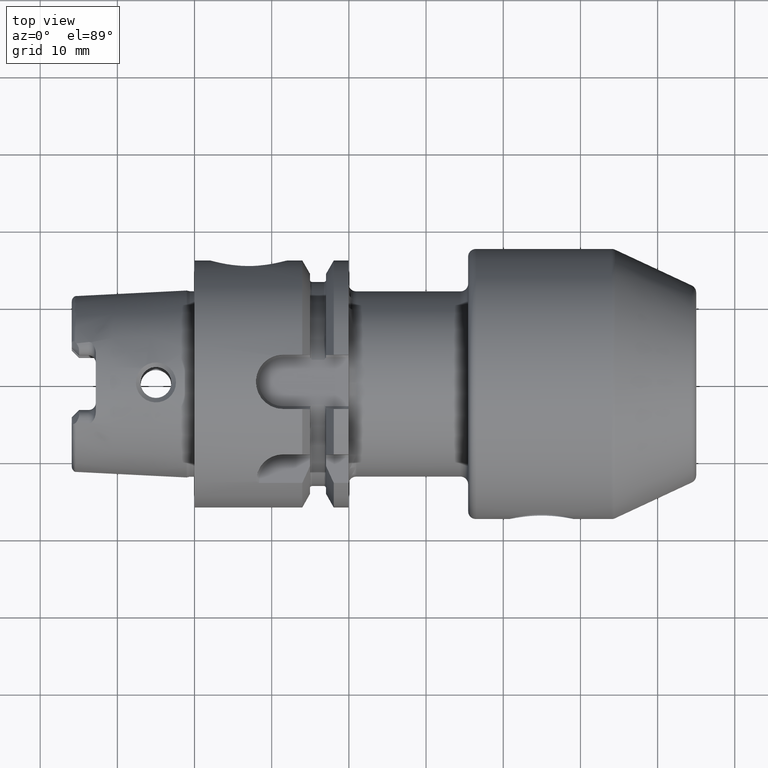
[diagram: clean part render]
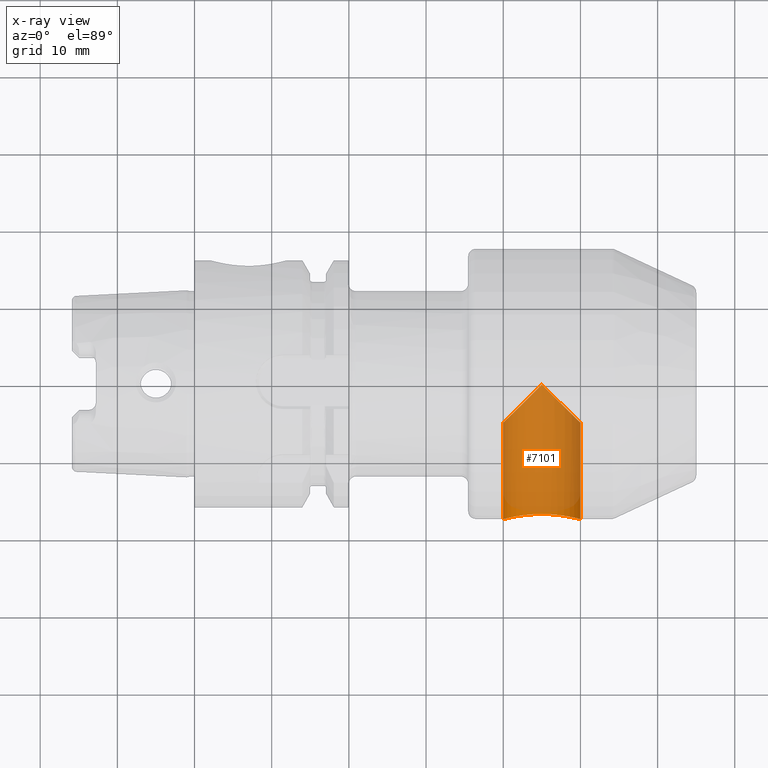
[diagram: x-ray — body ghosted, one internal face saturated and labeled with its STEP entity id]
A machine part, top view, then the same camera in x-ray: the body is ghosted and one INTERNAL B-rep face — a face not visible from any outside direction — is saturated and labeled: STEP entity #7101.
In plain terms, the highlighted cylindrical surface (partial cylindrical patch) has radius 5 mm, axis along (0, -1, 0).
Its self-contained STEP definition (entity closure, byte-faithful):
#6960=CARTESIAN_POINT('',(5.E1,-1.750001882073E1,0.E0));
#6961=CARTESIAN_POINT('',(5.E1,-1.750001882073E1,-2.513822096179E-1));
#6962=CARTESIAN_POINT('',(4.996202748881E1,-1.748908478417E1,
-7.525170180603E-1));
#6963=CARTESIAN_POINT('',(4.979449553978E1,-1.744198823040E1,
-1.482442708182E0));
#6964=CARTESIAN_POINT('',(4.952261441045E1,-1.736870491006E1,
-2.175137400793E0));
#6965=CARTESIAN_POINT('',(4.914879817776E1,-1.727447637405E1,
-2.823786207618E0));
#6966=CARTESIAN_POINT('',(4.868234792606E1,-1.716759094822E1,
-3.410248258553E0));
#6967=CARTESIAN_POINT('',(4.812638564615E1,-1.705613722733E1,
-3.926362360004E0));
#6968=CARTESIAN_POINT('',(4.750199890853E1,-1.695194627595E1,
-4.351045439277E0));
#6969=CARTESIAN_POINT('',(4.681623151629E1,-1.686375739760E1,
-4.678669192918E0));
#6970=CARTESIAN_POINT('',(4.610329985265E1,-1.680153063274E1,
-4.895647788118E0));
#6971=CARTESIAN_POINT('',(4.536558332958E1,-1.676907193550E1,
-5.004859775957E0));
#6972=CARTESIAN_POINT('',(4.462950417260E1,-1.676918171945E1,
-5.004494857183E0));
#6973=CARTESIAN_POINT('',(4.389198198702E1,-1.680184415666E1,
-4.894579878385E0));
#6974=CARTESIAN_POINT('',(4.317920283946E1,-1.686425166878E1,
-4.676902571664E0));
#6975=CARTESIAN_POINT('',(4.249361895271E1,-1.695259821295E1,
-4.348526860968E0));
#6976=CARTESIAN_POINT('',(4.186982825054E1,-1.705684197966E1,
-3.923309641860E0));
#6977=CARTESIAN_POINT('',(4.131493714153E1,-1.716818403709E1,
-3.407246428096E0));
#6978=CARTESIAN_POINT('',(4.084945612641E1,-1.727490230910E1,
-2.821143478633E0));
#6979=CARTESIAN_POINT('',(4.047640601784E1,-1.736896372494E1,
-2.173012856807E0));
#6980=CARTESIAN_POINT('',(4.020505650529E1,-1.744211302283E1,
-1.480872697594E0));
#6981=CARTESIAN_POINT('',(4.003788416150E1,-1.748911027278E1,
-7.516621819493E-1));
#6982=CARTESIAN_POINT('',(4.E1,-1.750001888243E1,-2.510893820635E-1));
#6983=CARTESIAN_POINT('',(4.E1,-1.750001888243E1,0.E0));
#6985=CARTESIAN_POINT('',(4.E1,-5.E0,0.E0));
#6986=CARTESIAN_POINT('',(4.E1,-5.E0,-1.985108039361E-1));
#6987=CARTESIAN_POINT('',(4.002368095154E1,-4.976319048462E0,
-5.969888167622E-1));
#6988=CARTESIAN_POINT('',(4.013108751316E1,-4.868912486843E0,
-1.189428788380E0));
#6989=CARTESIAN_POINT('',(4.031048620871E1,-4.689513791289E0,
-1.770882389295E0));
#6990=CARTESIAN_POINT('',(4.057174069843E1,-4.428259301572E0,
-2.352682368471E0));
#6991=CARTESIAN_POINT('',(4.092845757464E1,-4.071542425356E0,
-2.929461002972E0));
#6992=CARTESIAN_POINT('',(4.137523895990E1,-3.624761040102E0,
-3.468111766486E0));
#6993=CARTESIAN_POINT('',(4.191000896037E1,-3.089991039627E0,
-3.954280813785E0));
#6994=CARTESIAN_POINT('',(4.254869530639E1,-2.451304693611E0,
-4.381467364068E0));
#6995=CARTESIAN_POINT('',(4.329300519858E1,-1.706994801416E0,
-4.726253916085E0));
#6996=CARTESIAN_POINT('',(4.415804505704E1,-8.419549429637E-1,
-4.954631048385E0));
#6997=CARTESIAN_POINT('',(4.471859876556E1,-2.814012344358E-1,-5.E0));
#6998=CARTESIAN_POINT('',(4.5E1,0.E0,-5.E0));
#7000=CARTESIAN_POINT('',(4.5E1,0.E0,-5.E0));
#7001=CARTESIAN_POINT('',(4.528129515895E1,-2.812951589483E-1,-5.E0));
#7002=CARTESIAN_POINT('',(4.584169914675E1,-8.416991467458E-1,
-4.954680160921E0));
#7003=CARTESIAN_POINT('',(4.670697900899E1,-1.706979008986E0,
-4.726265725557E0));
#7004=CARTESIAN_POINT('',(4.745114533274E1,-2.451145332741E0,
-4.381542435024E0));
#7005=CARTESIAN_POINT('',(4.808970619666E1,-3.089706196662E0,
-3.954491395902E0));
#7006=CARTESIAN_POINT('',(4.862439652106E1,-3.624396521064E0,
-3.468489923005E0));
#7007=CARTESIAN_POINT('',(4.907129626855E1,-4.071296268546E0,
-2.929813339649E0));
#7008=CARTESIAN_POINT('',(4.942808900009E1,-4.428089000091E0,
-2.353003281549E0));
#7009=CARTESIAN_POINT('',(4.968938674526E1,-4.689386745260E0,
-1.771224421694E0));
#7010=CARTESIAN_POINT('',(4.986885950613E1,-4.868859506129E0,
-1.189670859486E0));
#7011=CARTESIAN_POINT('',(4.997631105535E1,-4.976311055346E0,
-5.970973193835E-1));
#7012=CARTESIAN_POINT('',(5.E1,-5.E0,-1.985456731734E-1));
#7013=CARTESIAN_POINT('',(5.E1,-5.E0,0.E0));
#7040=DIRECTION('',(0.E0,1.E0,0.E0));
#7041=VECTOR('',#7040,1.250001882073E1);
#7042=CARTESIAN_POINT('',(5.E1,-1.750001882073E1,0.E0));
#7043=LINE('',#7042,#7041);
#7074=DIRECTION('',(0.E0,1.E0,0.E0));
#7075=VECTOR('',#7074,1.250001888243E1);
#7076=CARTESIAN_POINT('',(4.E1,-1.750001888243E1,0.E0));
#7077=LINE('',#7076,#7075);
#7078=VERTEX_POINT('',#6983);
#7079=VERTEX_POINT('',#6960);
#7080=VERTEX_POINT('',#6998);
#7081=VERTEX_POINT('',#6985);
#7082=VERTEX_POINT('',#7013);
#7084=CARTESIAN_POINT('',(4.5E1,3.556340512410E0,0.E0));
#7085=DIRECTION('',(0.E0,-1.E0,0.E0));
#7086=DIRECTION('',(-1.E0,0.E0,0.E0));
#7087=AXIS2_PLACEMENT_3D('',#7084,#7085,#7086);
#7088=CYLINDRICAL_SURFACE('',#7087,5.E0);
#7090=ORIENTED_EDGE('',*,*,#7089,.T.);
#7092=ORIENTED_EDGE('',*,*,#7091,.T.);
#7094=ORIENTED_EDGE('',*,*,#7093,.T.);
#7096=ORIENTED_EDGE('',*,*,#7095,.T.);
#7098=ORIENTED_EDGE('',*,*,#7097,.F.);
#7099=EDGE_LOOP('',(#7090,#7092,#7094,#7096,#7098));
#7100=FACE_OUTER_BOUND('',#7099,.F.);
#7101=ADVANCED_FACE('',(#7100),#7088,.F.);
#6984=B_SPLINE_CURVE_WITH_KNOTS('',3,(#6960,#6961,#6962,#6963,#6964,#6965,#6966,
#6967,#6968,#6969,#6970,#6971,#6972,#6973,#6974,#6975,#6976,#6977,#6978,#6979,
#6980,#6981,#6982,#6983),.UNSPECIFIED.,.F.,.F.,(4,1,1,1,1,1,1,1,1,1,1,1,1,1,1,1,
1,1,1,1,1,4),(0.E0,4.761904761905E-2,9.523809523810E-2,1.428571428571E-1,
1.904761904762E-1,2.380952380952E-1,2.857142857143E-1,3.333333333333E-1,
3.809523809524E-1,4.285714285714E-1,4.761904761905E-1,5.238095238095E-1,
5.714285714286E-1,6.190476190476E-1,6.666666666667E-1,7.142857142857E-1,
7.619047619048E-1,8.095238095238E-1,8.571428571429E-1,9.047619047619E-1,
9.523809523810E-1,1.E0),.UNSPECIFIED.);
#6999=B_SPLINE_CURVE_WITH_KNOTS('',3,(#6985,#6986,#6987,#6988,#6989,#6990,#6991,
#6992,#6993,#6994,#6995,#6996,#6997,#6998),.UNSPECIFIED.,.F.,.F.,(4,1,1,1,1,1,1,
1,1,1,1,4),(0.E0,9.090909090909E-2,1.818181818182E-1,2.727272727273E-1,
3.636363636364E-1,4.545454545455E-1,5.454545454545E-1,6.363636363636E-1,
7.272727272727E-1,8.181818181818E-1,9.090909090909E-1,1.E0),.UNSPECIFIED.);
#7014=B_SPLINE_CURVE_WITH_KNOTS('',3,(#7000,#7001,#7002,#7003,#7004,#7005,#7006,
#7007,#7008,#7009,#7010,#7011,#7012,#7013),.UNSPECIFIED.,.F.,.F.,(4,1,1,1,1,1,1,
1,1,1,1,4),(0.E0,9.090909090909E-2,1.818181818182E-1,2.727272727273E-1,
3.636363636364E-1,4.545454545455E-1,5.454545454545E-1,6.363636363636E-1,
7.272727272727E-1,8.181818181818E-1,9.090909090909E-1,1.E0),.UNSPECIFIED.);
#7089=EDGE_CURVE('',#7079,#7078,#6984,.T.);
#7091=EDGE_CURVE('',#7078,#7081,#7077,.T.);
#7093=EDGE_CURVE('',#7081,#7080,#6999,.T.);
#7095=EDGE_CURVE('',#7080,#7082,#7014,.T.);
#7097=EDGE_CURVE('',#7079,#7082,#7043,.T.);